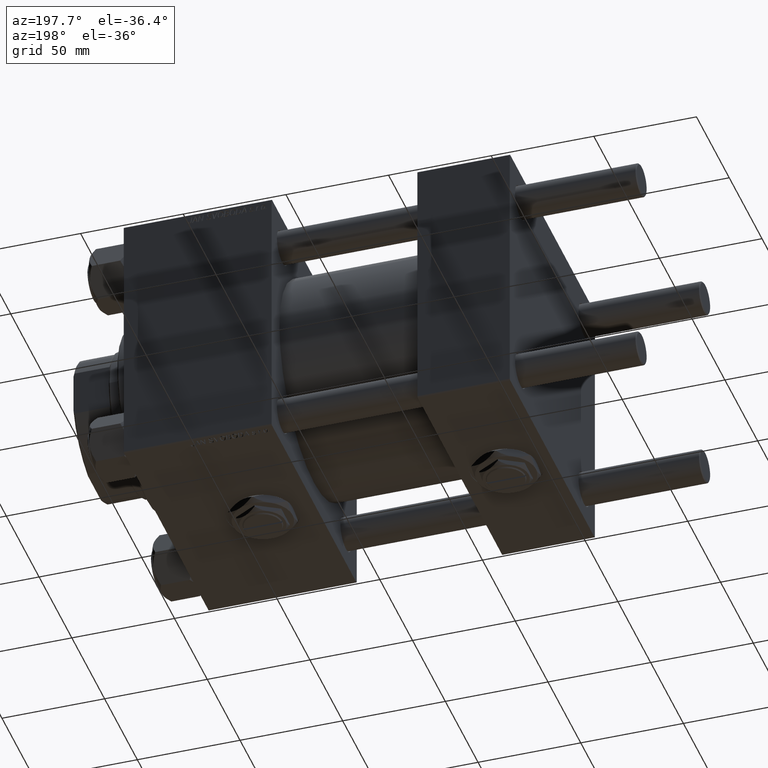
[diagram: clean part render]
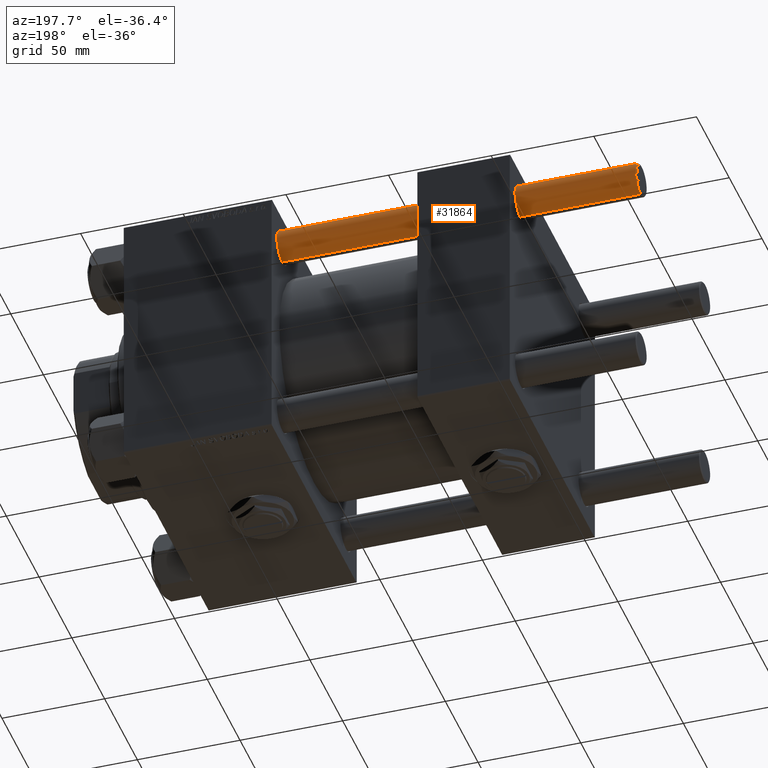
[diagram: same view with one face highlighted and labeled with its STEP entity id]
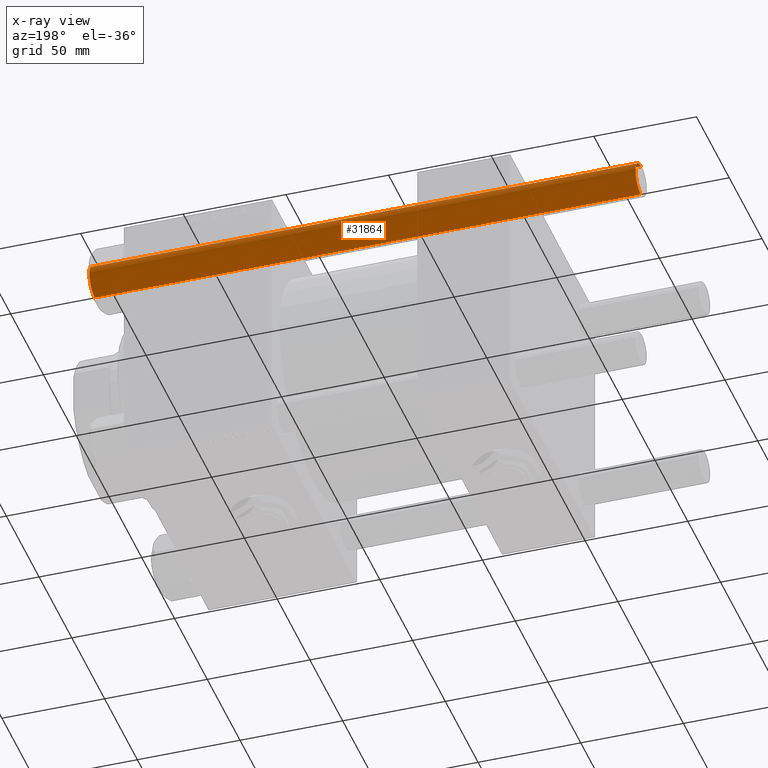
[diagram: x-ray of the same camera — body ghosted, the highlighted face saturated]
A machine part, auxiliary view. The second image highlights one B-rep face of the part: STEP entity #31864.
The next image is the same camera in x-ray: the body ghosted, the highlighted face saturated — about 0% of this face is hidden behind the body in this view.
In plain terms, the highlighted cylindrical surface (edge-blend (fillet) strip) has radius 8 mm, axis along (-1, -0, -0).
Its self-contained STEP definition (entity closure, byte-faithful):
#295 = VERTEX_POINT ( 'NONE', #40984 ) ;
#1113 = CYLINDRICAL_SURFACE ( 'NONE', #41361, 8.000000000000000000 ) ;
#1583 = CARTESIAN_POINT ( 'NONE',  ( -8.000000000000000000, 0.000000000000000000, 266.5000000000000568 ) ) ;
#2131 = CIRCLE ( 'NONE', #31803, 8.000000000000000000 ) ;
#6050 = EDGE_CURVE ( 'NONE', #52159, #37497, #30323, .T. ) ;
#7823 = CARTESIAN_POINT ( 'NONE',  ( -8.000000000000000000, 0.000000000000000000, 0.5000000000000559552 ) ) ;
#8433 = CARTESIAN_POINT ( 'NONE',  ( 8.000000000000000000, 9.797174393178825657E-16, 0.5000000000000559552 ) ) ;
#11935 = EDGE_CURVE ( 'NONE', #24878, #37497, #2131, .T. ) ;
#13812 = VECTOR ( 'NONE', #40384, 1000.000000000000000 ) ;
#14122 = ORIENTED_EDGE ( 'NONE', *, *, #11935, .T. ) ;
#16277 = CARTESIAN_POINT ( 'NONE',  ( 0.000000000000000000, 0.000000000000000000, 267.0000000000000000 ) ) ;
#16494 = EDGE_CURVE ( 'NONE', #295, #24878, #48876, .T. ) ;
#17541 = ORIENTED_EDGE ( 'NONE', *, *, #16494, .T. ) ;
#23188 = DIRECTION ( 'NONE',  ( 1.000000000000000000, 0.000000000000000000, 0.000000000000000000 ) ) ;
#24878 = VERTEX_POINT ( 'NONE', #8433 ) ;
#25003 = DIRECTION ( 'NONE',  ( -0.000000000000000000, -0.000000000000000000, -1.000000000000000000 ) ) ;
#25820 = DIRECTION ( 'NONE',  ( -0.000000000000000000, -0.000000000000000000, -1.000000000000000000 ) ) ;
#28157 = CARTESIAN_POINT ( 'NONE',  ( 8.000000000000000000, 9.797174393178825657E-16, 267.0000000000000000 ) ) ;
#29115 = CARTESIAN_POINT ( 'NONE',  ( 0.000000000000000000, 0.000000000000000000, 0.5000000000000559552 ) ) ;
#30323 = LINE ( 'NONE', #42026, #42752 ) ;
#31803 = AXIS2_PLACEMENT_3D ( 'NONE', #29115, #32567, #49554 ) ;
#31864 = ADVANCED_FACE ( 'NONE', ( #36959 ), #1113, .T. ) ;
#32567 = DIRECTION ( 'NONE',  ( -0.000000000000000000, -0.000000000000000000, 1.000000000000000000 ) ) ;
#33621 = EDGE_CURVE ( 'NONE', #52159, #295, #38843, .T. ) ;
#34211 = ORIENTED_EDGE ( 'NONE', *, *, #33621, .T. ) ;
#36959 = FACE_OUTER_BOUND ( 'NONE', #52356, .T. ) ;
#37497 = VERTEX_POINT ( 'NONE', #7823 ) ;
#38843 = CIRCLE ( 'NONE', #42141, 8.000000000000000000 ) ;
#39122 = DIRECTION ( 'NONE',  ( 0.000000000000000000, 0.000000000000000000, -1.000000000000000000 ) ) ;
#40384 = DIRECTION ( 'NONE',  ( -0.000000000000000000, -0.000000000000000000, -1.000000000000000000 ) ) ;
#40984 = CARTESIAN_POINT ( 'NONE',  ( 8.000000000000000000, 9.797174393178825657E-16, 266.5000000000000568 ) ) ;
#41211 = DIRECTION ( 'NONE',  ( -1.000000000000000000, 0.000000000000000000, 0.000000000000000000 ) ) ;
#41361 = AXIS2_PLACEMENT_3D ( 'NONE', #16277, #25003, #41211 ) ;
#42026 = CARTESIAN_POINT ( 'NONE',  ( -8.000000000000000000, 0.000000000000000000, 267.0000000000000000 ) ) ;
#42141 = AXIS2_PLACEMENT_3D ( 'NONE', #50809, #39122, #23188 ) ;
#42752 = VECTOR ( 'NONE', #25820, 1000.000000000000000 ) ;
#43567 = ORIENTED_EDGE ( 'NONE', *, *, #6050, .F. ) ;
#48876 = LINE ( 'NONE', #28157, #13812 ) ;
#49554 = DIRECTION ( 'NONE',  ( 1.000000000000000000, 0.000000000000000000, 0.000000000000000000 ) ) ;
#50809 = CARTESIAN_POINT ( 'NONE',  ( 0.000000000000000000, 0.000000000000000000, 266.5000000000000568 ) ) ;
#52159 = VERTEX_POINT ( 'NONE', #1583 ) ;
#52356 = EDGE_LOOP ( 'NONE', ( #34211, #17541, #14122, #43567 ) ) ;